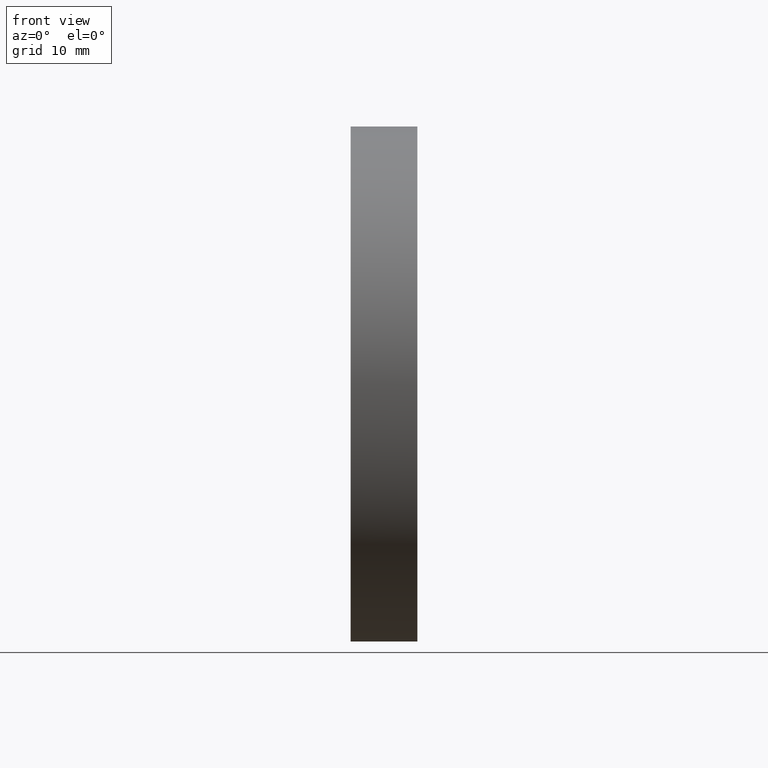
[diagram: clean part render]
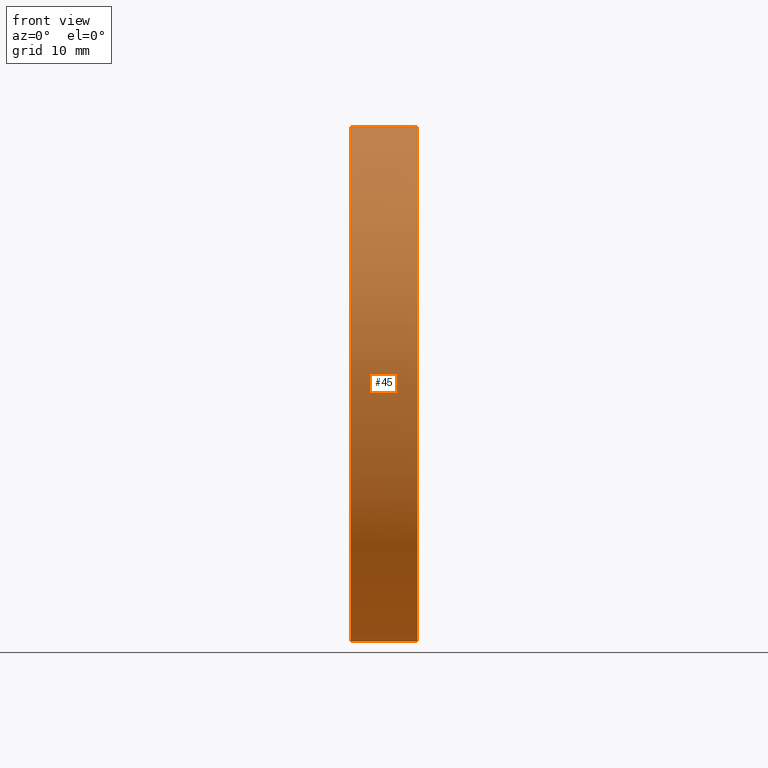
[diagram: same view with one face highlighted and labeled with its STEP entity id]
A machine part, front view. The second image highlights one B-rep face of the part: STEP entity #45.
In plain terms, the highlighted cylindrical surface (partial cylindrical patch) has radius 37.5 mm, axis along (-1, -0, -0).
Its self-contained STEP definition (entity closure, byte-faithful):
#2 = EDGE_CURVE ( 'NONE', #143, #42, #85, .T. ) ;
#3 = CARTESIAN_POINT ( 'NONE',  ( 217.9702860043302100, 138.7560422467448700, -37.50000000000000700 ) ) ;
#8 = AXIS2_PLACEMENT_3D ( 'NONE', #165, #16, #30 ) ;
#10 = DIRECTION ( 'NONE',  ( 0.0000000000000000000, 0.0000000000000000000, 1.000000000000000000 ) ) ;
#11 = CARTESIAN_POINT ( 'NONE',  ( 239.9029842799563700, 101.2560422467461900, 0.0000000000000000000 ) ) ;
#12 = CARTESIAN_POINT ( 'NONE',  ( 239.9029842799564000, 138.7560422467448700, 0.0000000000000000000 ) ) ;
#16 = DIRECTION ( 'NONE',  ( -1.000000000000000000, -0.0000000000000000000, -0.0000000000000000000 ) ) ;
#17 = CIRCLE ( 'NONE', #93, 37.50000000000000700 ) ;
#21 = EDGE_LOOP ( 'NONE', ( #37, #127, #173, #170, #102 ) ) ;
#22 = EDGE_CURVE ( 'NONE', #91, #42, #138, .T. ) ;
#23 = CARTESIAN_POINT ( 'NONE',  ( 230.1996119052661200, 138.7560422467448700, 0.0000000000000000000 ) ) ;
#25 = VERTEX_POINT ( 'NONE', #75 ) ;
#30 = DIRECTION ( 'NONE',  ( 0.0000000000000000000, 0.0000000000000000000, 1.000000000000000000 ) ) ;
#34 = AXIS2_PLACEMENT_3D ( 'NONE', #23, #41, #61 ) ;
#37 = ORIENTED_EDGE ( 'NONE', *, *, #81, .F. ) ;
#41 = DIRECTION ( 'NONE',  ( -1.000000000000000000, -0.0000000000000000000, -0.0000000000000000000 ) ) ;
#42 = VERTEX_POINT ( 'NONE', #133 ) ;
#45 = ADVANCED_FACE ( 'NONE', ( #78 ), #123, .T. ) ;
#61 = DIRECTION ( 'NONE',  ( 0.0000000000000000000, 0.0000000000000000000, 1.000000000000000000 ) ) ;
#66 = DIRECTION ( 'NONE',  ( -1.000000000000000000, -0.0000000000000000000, -0.0000000000000000000 ) ) ;
#69 = DIRECTION ( 'NONE',  ( 0.0000000000000000000, 0.0000000000000000000, 1.000000000000000000 ) ) ;
#75 = CARTESIAN_POINT ( 'NONE',  ( 239.9029842799564000, 138.7560422467448700, -37.50000000000000700 ) ) ;
#78 = FACE_OUTER_BOUND ( 'NONE', #21, .T. ) ;
#80 = CARTESIAN_POINT ( 'NONE',  ( 230.1996119052661200, 138.7560422467448700, -37.50000000000000700 ) ) ;
#81 = EDGE_CURVE ( 'NONE', #25, #91, #139, .T. ) ;
#85 = LINE ( 'NONE', #160, #132 ) ;
#91 = VERTEX_POINT ( 'NONE', #80 ) ;
#93 = AXIS2_PLACEMENT_3D ( 'NONE', #12, #66, #10 ) ;
#96 = EDGE_CURVE ( 'NONE', #25, #111, #17, .T. ) ;
#100 = VECTOR ( 'NONE', #177, 1000.000000000000000 ) ;
#102 = ORIENTED_EDGE ( 'NONE', *, *, #22, .F. ) ;
#103 = AXIS2_PLACEMENT_3D ( 'NONE', #113, #112, #69 ) ;
#111 = VERTEX_POINT ( 'NONE', #11 ) ;
#112 = DIRECTION ( 'NONE',  ( -1.000000000000000000, -0.0000000000000000000, -0.0000000000000000000 ) ) ;
#113 = CARTESIAN_POINT ( 'NONE',  ( 239.9029842799564000, 138.7560422467448700, 0.0000000000000000000 ) ) ;
#118 = DIRECTION ( 'NONE',  ( -1.000000000000000000, -0.0000000000000000000, -0.0000000000000000000 ) ) ;
#123 = CYLINDRICAL_SURFACE ( 'NONE', #8, 37.50000000000000700 ) ;
#127 = ORIENTED_EDGE ( 'NONE', *, *, #96, .T. ) ;
#131 = CARTESIAN_POINT ( 'NONE',  ( 239.9029842799564000, 138.7560422467448700, 37.50000000000000700 ) ) ;
#132 = VECTOR ( 'NONE', #118, 1000.000000000000000 ) ;
#133 = CARTESIAN_POINT ( 'NONE',  ( 230.1996119052661200, 138.7560422467448700, 37.50000000000000700 ) ) ;
#138 = CIRCLE ( 'NONE', #34, 37.50000000000000700 ) ;
#139 = LINE ( 'NONE', #3, #100 ) ;
#143 = VERTEX_POINT ( 'NONE', #131 ) ;
#160 = CARTESIAN_POINT ( 'NONE',  ( 217.9702860043302100, 138.7560422467448700, 37.50000000000000700 ) ) ;
#164 = CIRCLE ( 'NONE', #103, 37.50000000000000700 ) ;
#165 = CARTESIAN_POINT ( 'NONE',  ( 217.9702860043302100, 138.7560422467448700, 0.0000000000000000000 ) ) ;
#170 = ORIENTED_EDGE ( 'NONE', *, *, #2, .T. ) ;
#173 = ORIENTED_EDGE ( 'NONE', *, *, #183, .T. ) ;
#177 = DIRECTION ( 'NONE',  ( -1.000000000000000000, -0.0000000000000000000, -0.0000000000000000000 ) ) ;
#183 = EDGE_CURVE ( 'NONE', #111, #143, #164, .T. ) ;